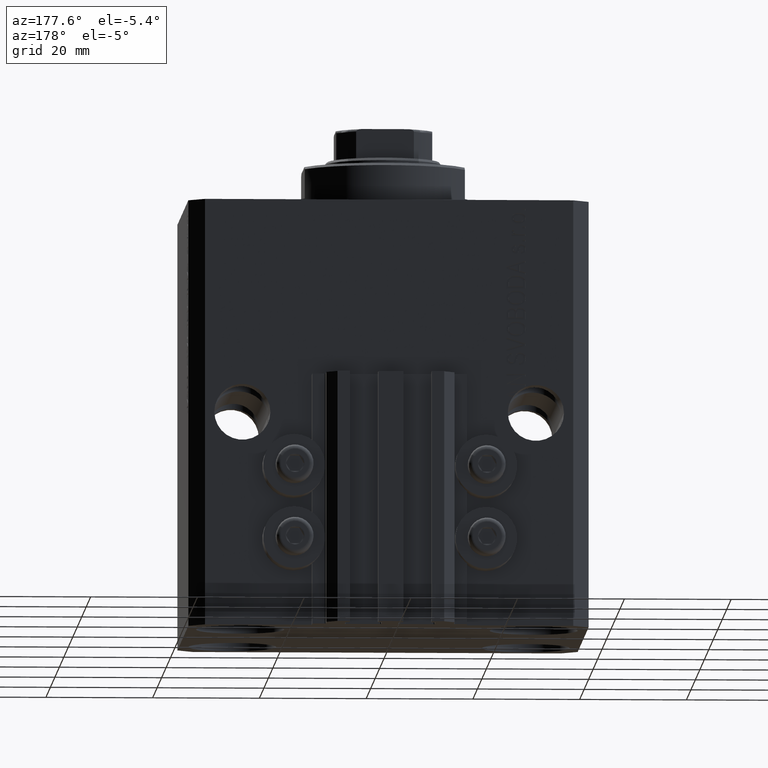
[diagram: clean part render]
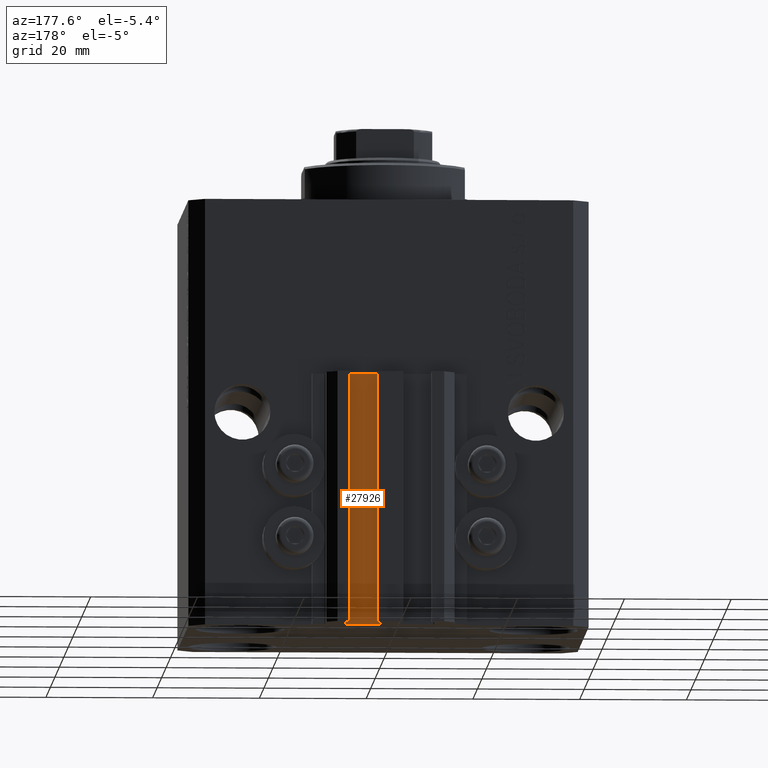
[diagram: same view with one face highlighted and labeled with its STEP entity id]
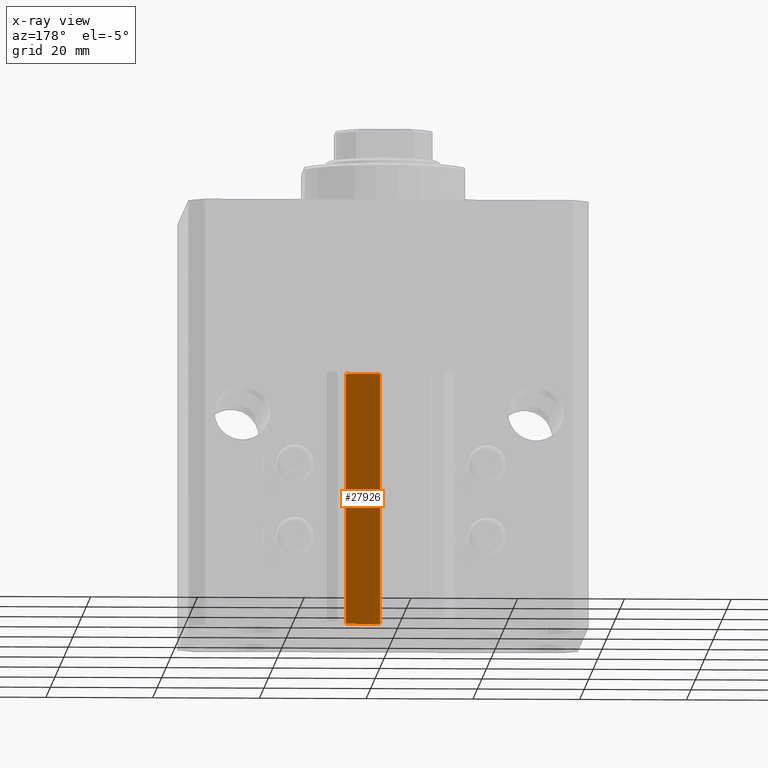
[diagram: x-ray of the same camera — body ghosted, the highlighted face saturated]
A machine part, auxiliary view. The second image highlights one B-rep face of the part: STEP entity #27926.
The next image is the same camera in x-ray: the body ghosted, the highlighted face saturated — about 0% of this face is hidden behind the body in this view.
In plain terms, the highlighted planar face has unit normal (-0, 1, 0).
Its self-contained STEP definition (entity closure, byte-faithful):
#146 = EDGE_CURVE ( 'NONE', #44692, #14666, #35807, .T. ) ;
#5180 = FACE_OUTER_BOUND ( 'NONE', #6045, .T. ) ;
#6045 = EDGE_LOOP ( 'NONE', ( #40896, #18511, #9397, #38270 ) ) ;
#6701 = CARTESIAN_POINT ( 'NONE',  ( 8.199999999999999289, 29.50000000000000711, -80.00000000000000000 ) ) ;
#7602 = CARTESIAN_POINT ( 'NONE',  ( 8.199999999999999289, 29.50000000000000711, -33.00000000000000000 ) ) ;
#7776 = CARTESIAN_POINT ( 'NONE',  ( 8.199999999999999289, 29.50000000000000711, -80.00000000000000000 ) ) ;
#8531 = EDGE_CURVE ( 'NONE', #11880, #14666, #27838, .T. ) ;
#9397 = ORIENTED_EDGE ( 'NONE', *, *, #18478, .T. ) ;
#10953 = LINE ( 'NONE', #6701, #18480 ) ;
#11644 = VECTOR ( 'NONE', #29084, 1000.000000000000000 ) ;
#11800 = CARTESIAN_POINT ( 'NONE',  ( 8.199999999999999289, 29.50000000000000711, -80.00000000000000000 ) ) ;
#11880 = VERTEX_POINT ( 'NONE', #7602 ) ;
#14666 = VERTEX_POINT ( 'NONE', #28258 ) ;
#17423 = CARTESIAN_POINT ( 'NONE',  ( 8.199999999999999289, 29.50000000000000711, -33.00000000000000000 ) ) ;
#17829 = DIRECTION ( 'NONE',  ( 0.000000000000000000, 0.000000000000000000, 1.000000000000000000 ) ) ;
#18181 = CARTESIAN_POINT ( 'NONE',  ( 1.800000000000000933, 29.50000000000000000, -80.00000000000000000 ) ) ;
#18478 = EDGE_CURVE ( 'NONE', #37564, #44692, #43312, .T. ) ;
#18480 = VECTOR ( 'NONE', #17829, 1000.000000000000000 ) ;
#18511 = ORIENTED_EDGE ( 'NONE', *, *, #22180, .F. ) ;
#19863 = DIRECTION ( 'NONE',  ( -1.000000000000000000, -1.084202172485504828E-15, 0.000000000000000000 ) ) ;
#22180 = EDGE_CURVE ( 'NONE', #37564, #11880, #10953, .T. ) ;
#24685 = AXIS2_PLACEMENT_3D ( 'NONE', #11800, #37616, #19863 ) ;
#27838 = LINE ( 'NONE', #17423, #38570 ) ;
#27926 = ADVANCED_FACE ( 'NONE', ( #5180 ), #44725, .T. ) ;
#28258 = CARTESIAN_POINT ( 'NONE',  ( 1.800000000000000933, 29.50000000000000000, -33.00000000000000000 ) ) ;
#28302 = DIRECTION ( 'NONE',  ( -1.000000000000000000, -1.084202172485504828E-15, 0.000000000000000000 ) ) ;
#29084 = DIRECTION ( 'NONE',  ( -1.000000000000000000, -1.084202172485504828E-15, 0.000000000000000000 ) ) ;
#32473 = CARTESIAN_POINT ( 'NONE',  ( 1.800000000000000933, 29.50000000000000000, -80.00000000000000000 ) ) ;
#35478 = VECTOR ( 'NONE', #36036, 1000.000000000000000 ) ;
#35807 = LINE ( 'NONE', #32473, #35478 ) ;
#36036 = DIRECTION ( 'NONE',  ( 0.000000000000000000, 0.000000000000000000, 1.000000000000000000 ) ) ;
#37564 = VERTEX_POINT ( 'NONE', #38008 ) ;
#37616 = DIRECTION ( 'NONE',  ( -1.084202172485504828E-15, 1.000000000000000000, 0.000000000000000000 ) ) ;
#38008 = CARTESIAN_POINT ( 'NONE',  ( 8.199999999999999289, 29.50000000000000711, -80.00000000000000000 ) ) ;
#38270 = ORIENTED_EDGE ( 'NONE', *, *, #146, .T. ) ;
#38570 = VECTOR ( 'NONE', #28302, 1000.000000000000000 ) ;
#40896 = ORIENTED_EDGE ( 'NONE', *, *, #8531, .F. ) ;
#43312 = LINE ( 'NONE', #7776, #11644 ) ;
#44692 = VERTEX_POINT ( 'NONE', #18181 ) ;
#44725 = PLANE ( 'NONE',  #24685 ) ;